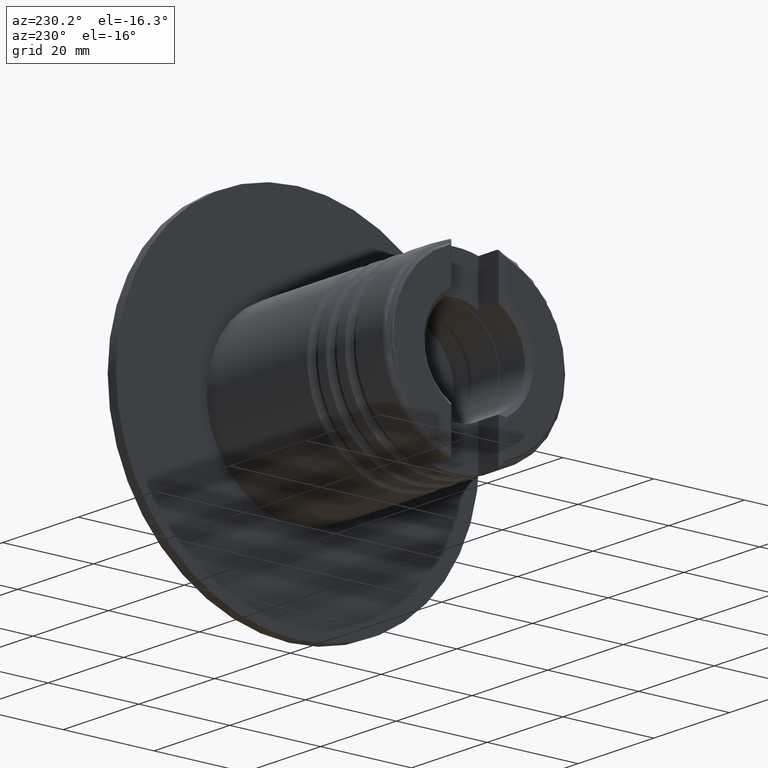
[diagram: clean part render]
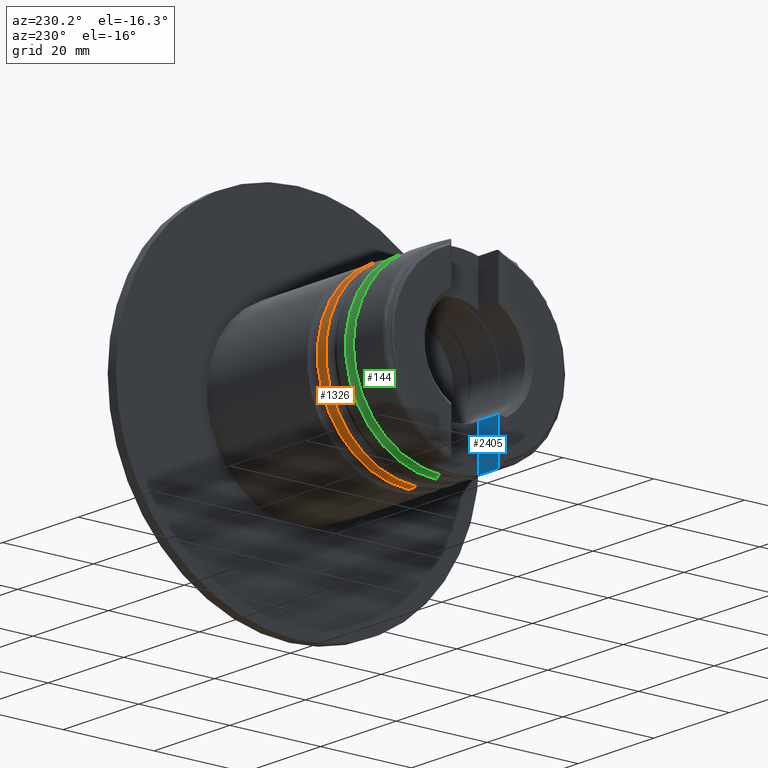
[diagram: same view with three faces highlighted in distinct colors, each labeled with its STEP entity id]
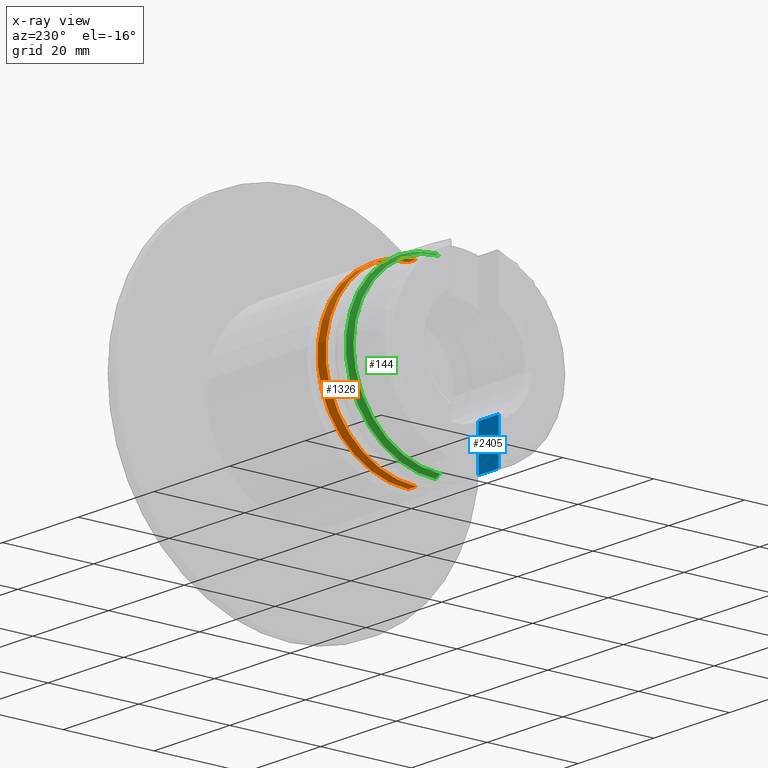
[diagram: x-ray of the same camera — body ghosted, the three highlighted faces saturated]
A machine part, auxiliary view with three faces highlighted in distinct colors.
The next image is the same camera in x-ray (body ghosted, the three faces saturated) — at least one of them is partly hidden behind the body in this view.
Their STEP definitions:

[orange] entity #1326 — the highlighted cylindrical surface (partial cylindrical patch) has radius 20 mm, axis along (1, 0, 0).
#58 = EDGE_CURVE ( 'NONE', #4654, #151, #4177, .T. ) ;
#137 = AXIS2_PLACEMENT_3D ( 'NONE', #2887, #506, #4179 ) ;
#151 = VERTEX_POINT ( 'NONE', #3082 ) ;
#395 = CARTESIAN_POINT ( 'NONE',  ( 0.0000000000000000000, 0.0000000000000000000, -19.99999999999999645 ) ) ;
#481 = CIRCLE ( 'NONE', #2958, 19.99999999999999645 ) ;
#506 = DIRECTION ( 'NONE',  ( -1.000000000000000000, -0.0000000000000000000, -0.0000000000000000000 ) ) ;
#792 = DIRECTION ( 'NONE',  ( 1.000000000000000000, -0.0000000000000000000, -0.0000000000000000000 ) ) ;
#870 = DIRECTION ( 'NONE',  ( 1.000000000000000000, -0.0000000000000000000, -0.0000000000000000000 ) ) ;
#1272 = VERTEX_POINT ( 'NONE', #4032 ) ;
#1292 = ORIENTED_EDGE ( 'NONE', *, *, #4079, .F. ) ;
#1326 = ADVANCED_FACE ( 'NONE', ( #1637 ), #1516, .T. ) ;
#1498 = VERTEX_POINT ( 'NONE', #4077 ) ;
#1516 = CYLINDRICAL_SURFACE ( 'NONE', #2358, 19.99999999999999645 ) ;
#1637 = FACE_OUTER_BOUND ( 'NONE', #1935, .T. ) ;
#1874 = VECTOR ( 'NONE', #870, 1000.000000000000000 ) ;
#1935 = EDGE_LOOP ( 'NONE', ( #5062, #3601, #3493, #1292 ) ) ;
#2116 = LINE ( 'NONE', #4736, #1874 ) ;
#2269 = EDGE_CURVE ( 'NONE', #1498, #1272, #481, .T. ) ;
#2358 = AXIS2_PLACEMENT_3D ( 'NONE', #3728, #3326, #3709 ) ;
#2887 = CARTESIAN_POINT ( 'NONE',  ( -31.15951384798715651, 0.0000000000000000000, 0.0000000000000000000 ) ) ;
#2934 = EDGE_CURVE ( 'NONE', #1498, #4654, #2116, .T. ) ;
#2958 = AXIS2_PLACEMENT_3D ( 'NONE', #3099, #3510, #5144 ) ;
#3082 = CARTESIAN_POINT ( 'NONE',  ( -31.15951384798715651, 2.449293598294705724E-15, -19.99999999999999645 ) ) ;
#3099 = CARTESIAN_POINT ( 'NONE',  ( -33.33993941201282496, 0.0000000000000000000, 0.0000000000000000000 ) ) ;
#3326 = DIRECTION ( 'NONE',  ( 1.000000000000000000, -0.0000000000000000000, -0.0000000000000000000 ) ) ;
#3493 = ORIENTED_EDGE ( 'NONE', *, *, #58, .T. ) ;
#3510 = DIRECTION ( 'NONE',  ( -1.000000000000000000, -0.0000000000000000000, -0.0000000000000000000 ) ) ;
#3601 = ORIENTED_EDGE ( 'NONE', *, *, #2934, .T. ) ;
#3709 = DIRECTION ( 'NONE',  ( 0.0000000000000000000, 0.0000000000000000000, -1.000000000000000000 ) ) ;
#3728 = CARTESIAN_POINT ( 'NONE',  ( 0.0000000000000000000, 0.0000000000000000000, 0.0000000000000000000 ) ) ;
#3846 = VECTOR ( 'NONE', #792, 1000.000000000000000 ) ;
#4032 = CARTESIAN_POINT ( 'NONE',  ( -33.33993941201282496, 0.0000000000000000000, -19.99999999999999645 ) ) ;
#4077 = CARTESIAN_POINT ( 'NONE',  ( -33.33993941201282496, 2.449293598294706119E-15, 19.99999999999999645 ) ) ;
#4079 = EDGE_CURVE ( 'NONE', #1272, #151, #4335, .T. ) ;
#4177 = CIRCLE ( 'NONE', #137, 19.99999999999999645 ) ;
#4179 = DIRECTION ( 'NONE',  ( 0.0000000000000000000, 0.0000000000000000000, 1.000000000000000000 ) ) ;
#4335 = LINE ( 'NONE', #395, #3846 ) ;
#4654 = VERTEX_POINT ( 'NONE', #4776 ) ;
#4736 = CARTESIAN_POINT ( 'NONE',  ( 0.0000000000000000000, 2.449293598294706119E-15, 19.99999999999999645 ) ) ;
#4776 = CARTESIAN_POINT ( 'NONE',  ( -31.15951384798715651, 0.0000000000000000000, 19.99999999999999645 ) ) ;
#5062 = ORIENTED_EDGE ( 'NONE', *, *, #2269, .F. ) ;
#5144 = DIRECTION ( 'NONE',  ( 0.0000000000000000000, 0.0000000000000000000, 1.000000000000000000 ) ) ;

[blue] entity #2405 — the highlighted planar face has unit normal (0, -1, 0).
#171 = DIRECTION ( 'NONE',  ( -0.0000000000000000000, -0.0000000000000000000, 1.000000000000000000 ) ) ;
#380 = VERTEX_POINT ( 'NONE', #4466 ) ;
#398 = EDGE_CURVE ( 'NONE', #2329, #2764, #3527, .T. ) ;
#564 = LINE ( 'NONE', #1366, #1053 ) ;
#614 = LINE ( 'NONE', #1513, #4756 ) ;
#617 = DIRECTION ( 'NONE',  ( -0.0000000000000000000, -0.0000000000000000000, 1.000000000000000000 ) ) ;
#635 = AXIS2_PLACEMENT_3D ( 'NONE', #2290, #5050, #2701 ) ;
#976 = B_SPLINE_CURVE_WITH_KNOTS ( 'NONE', 3,
 ( #2212, #1011, #4133, #4926, #3780, #2585 ),
 .UNSPECIFIED., .F., .F.,
 ( 4, 2, 4 ),
 ( 0.006189759150747369855, 0.006450475082113485067, 0.006711191013479599413 ),
 .UNSPECIFIED. ) ;
#1009 = VECTOR ( 'NONE', #5122, 1000.000000000000000 ) ;
#1011 = CARTESIAN_POINT ( 'NONE',  ( -48.33791550530337844, -5.200000000000006395, -19.31217232731728473 ) ) ;
#1026 = EDGE_CURVE ( 'NONE', #2329, #1401, #614, .T. ) ;
#1053 = VECTOR ( 'NONE', #171, 1000.000000000000000 ) ;
#1340 = FACE_OUTER_BOUND ( 'NONE', #2380, .T. ) ;
#1366 = CARTESIAN_POINT ( 'NONE',  ( -48.74972662999999073, -5.200000000000006395, -25.00000000000000000 ) ) ;
#1401 = VERTEX_POINT ( 'NONE', #2152 ) ;
#1513 = CARTESIAN_POINT ( 'NONE',  ( 8.509964221773027172E-16, -5.199999999999999289, -19.31217232731729538 ) ) ;
#1750 = ORIENTED_EDGE ( 'NONE', *, *, #3692, .T. ) ;
#2058 = LINE ( 'NONE', #4320, #1009 ) ;
#2152 = CARTESIAN_POINT ( 'NONE',  ( -48.24972663000000495, -5.199999999999999289, -19.31217232731729538 ) ) ;
#2212 = CARTESIAN_POINT ( 'NONE',  ( -48.24972663000000495, -5.199999999999999289, -19.31217232731729538 ) ) ;
#2290 = CARTESIAN_POINT ( 'NONE',  ( -43.44972663000000068, -5.200000000000005507, -25.00000000000000000 ) ) ;
#2329 = VERTEX_POINT ( 'NONE', #4215 ) ;
#2380 = EDGE_LOOP ( 'NONE', ( #5032, #1750, #4650, #3791, #5035 ) ) ;
#2405 = ADVANCED_FACE ( 'NONE', ( #1340 ), #4657, .F. ) ;
#2472 = EDGE_CURVE ( 'NONE', #2764, #380, #2058, .T. ) ;
#2585 = CARTESIAN_POINT ( 'NONE',  ( -48.74972662999999073, -5.200000000000006395, -19.17339211886639205 ) ) ;
#2701 = DIRECTION ( 'NONE',  ( 1.000000000000000000, 1.636531581110197874E-16, 0.0000000000000000000 ) ) ;
#2764 = VERTEX_POINT ( 'NONE', #3871 ) ;
#2986 = CARTESIAN_POINT ( 'NONE',  ( -43.44972663000000068, -5.200000000000005507, -25.00000000000000000 ) ) ;
#3527 = LINE ( 'NONE', #2986, #4755 ) ;
#3692 = EDGE_CURVE ( 'NONE', #4970, #380, #564, .T. ) ;
#3733 = EDGE_CURVE ( 'NONE', #1401, #4970, #976, .T. ) ;
#3780 = CARTESIAN_POINT ( 'NONE',  ( -48.67409322424862950, -5.200000000000006395, -19.21863654268734223 ) ) ;
#3791 = ORIENTED_EDGE ( 'NONE', *, *, #398, .F. ) ;
#3830 = DIRECTION ( 'NONE',  ( -1.000000000000000000, 0.0000000000000000000, 0.0000000000000000000 ) ) ;
#3871 = CARTESIAN_POINT ( 'NONE',  ( -43.44972663000000068, -5.200000000000005507, -9.778324242936511368 ) ) ;
#4064 = CARTESIAN_POINT ( 'NONE',  ( -48.74972662999999073, -5.200000000000006395, -19.17339211886639205 ) ) ;
#4133 = CARTESIAN_POINT ( 'NONE',  ( -48.42595634960524364, -5.200000000000007283, -19.29994633938877868 ) ) ;
#4215 = CARTESIAN_POINT ( 'NONE',  ( -43.44972663000000068, -5.200000000000005507, -19.31217232731729538 ) ) ;
#4320 = CARTESIAN_POINT ( 'NONE',  ( 8.509964221773027172E-16, -5.199999999999999289, -9.778324242936511368 ) ) ;
#4466 = CARTESIAN_POINT ( 'NONE',  ( -48.74972662999999073, -5.199999999999999289, -9.778324242936511368 ) ) ;
#4650 = ORIENTED_EDGE ( 'NONE', *, *, #2472, .F. ) ;
#4657 = PLANE ( 'NONE',  #635 ) ;
#4755 = VECTOR ( 'NONE', #617, 1000.000000000000000 ) ;
#4756 = VECTOR ( 'NONE', #3830, 1000.000000000000000 ) ;
#4926 = CARTESIAN_POINT ( 'NONE',  ( -48.59412281667071198, -5.200000000000006395, -19.25298664473530152 ) ) ;
#4970 = VERTEX_POINT ( 'NONE', #4064 ) ;
#5032 = ORIENTED_EDGE ( 'NONE', *, *, #3733, .T. ) ;
#5035 = ORIENTED_EDGE ( 'NONE', *, *, #1026, .T. ) ;
#5050 = DIRECTION ( 'NONE',  ( 1.636531581110197874E-16, -1.000000000000000000, 0.0000000000000000000 ) ) ;
#5122 = DIRECTION ( 'NONE',  ( -1.000000000000000000, 0.0000000000000000000, 0.0000000000000000000 ) ) ;

[green] entity #144 — the highlighted toroidal blend (fillet) surface has major radius 20.75 mm and minor (blend) radius 1.5 mm.
#67 = EDGE_CURVE ( 'NONE', #250, #1010, #3035, .T. ) ;
#68 = EDGE_CURVE ( 'NONE', #3282, #2039, #5008, .T. ) ;
#144 = ADVANCED_FACE ( 'NONE', ( #2030 ), #3219, .F. ) ;
#250 = VERTEX_POINT ( 'NONE', #2068 ) ;
#539 = CARTESIAN_POINT ( 'NONE',  ( -38.50579673177601592, 0.0000000000000000000, 0.0000000000000000000 ) ) ;
#559 = ORIENTED_EDGE ( 'NONE', *, *, #2001, .T. ) ;
#675 = CARTESIAN_POINT ( 'NONE',  ( -38.50579673177601592, 0.0000000000000000000, 19.91176470588235148 ) ) ;
#797 = AXIS2_PLACEMENT_3D ( 'NONE', #4232, #4977, #3417 ) ;
#917 = ORIENTED_EDGE ( 'NONE', *, *, #67, .T. ) ;
#1010 = VERTEX_POINT ( 'NONE', #675 ) ;
#1777 = DIRECTION ( 'NONE',  ( 0.0000000000000000000, 0.0000000000000000000, 1.000000000000000000 ) ) ;
#1838 = CARTESIAN_POINT ( 'NONE',  ( -39.74972662999999073, 0.0000000000000000000, 20.74999999999999645 ) ) ;
#2001 = EDGE_CURVE ( 'NONE', #1010, #2039, #2871, .T. ) ;
#2030 = FACE_OUTER_BOUND ( 'NONE', #3850, .T. ) ;
#2039 = VERTEX_POINT ( 'NONE', #4522 ) ;
#2068 = CARTESIAN_POINT ( 'NONE',  ( -39.74972662999999073, 0.0000000000000000000, 19.24999999999999645 ) ) ;
#2431 = CIRCLE ( 'NONE', #797, 19.24999999999999645 ) ;
#2601 = DIRECTION ( 'NONE',  ( -1.000000000000000000, -0.0000000000000000000, -0.0000000000000000000 ) ) ;
#2630 = ORIENTED_EDGE ( 'NONE', *, *, #68, .F. ) ;
#2693 = DIRECTION ( 'NONE',  ( 0.0000000000000000000, 0.0000000000000000000, 1.000000000000000000 ) ) ;
#2727 = ORIENTED_EDGE ( 'NONE', *, *, #3975, .F. ) ;
#2871 = CIRCLE ( 'NONE', #4968, 19.91176470588235148 ) ;
#3021 = DIRECTION ( 'NONE',  ( 0.0000000000000000000, -1.000000000000000000, 0.0000000000000000000 ) ) ;
#3035 = CIRCLE ( 'NONE', #4058, 1.500000000000001332 ) ;
#3219 = TOROIDAL_SURFACE ( 'NONE', #3862, 20.74999999999999645, 1.500000000000000666 ) ;
#3282 = VERTEX_POINT ( 'NONE', #4138 ) ;
#3332 = AXIS2_PLACEMENT_3D ( 'NONE', #4954, #4576, #3806 ) ;
#3417 = DIRECTION ( 'NONE',  ( 0.0000000000000000000, 0.0000000000000000000, 1.000000000000000000 ) ) ;
#3425 = DIRECTION ( 'NONE',  ( 0.0000000000000000000, 0.0000000000000000000, -1.000000000000000000 ) ) ;
#3806 = DIRECTION ( 'NONE',  ( 0.0000000000000000000, -1.224646799147351975E-16, 1.000000000000000000 ) ) ;
#3850 = EDGE_LOOP ( 'NONE', ( #2727, #917, #559, #2630 ) ) ;
#3862 = AXIS2_PLACEMENT_3D ( 'NONE', #5041, #4240, #2693 ) ;
#3975 = EDGE_CURVE ( 'NONE', #250, #3282, #2431, .T. ) ;
#4058 = AXIS2_PLACEMENT_3D ( 'NONE', #1838, #3021, #3425 ) ;
#4138 = CARTESIAN_POINT ( 'NONE',  ( -39.74972662999999073, 2.357445088358654363E-15, -19.24999999999999645 ) ) ;
#4232 = CARTESIAN_POINT ( 'NONE',  ( -39.74972662999999073, 0.0000000000000000000, 0.0000000000000000000 ) ) ;
#4240 = DIRECTION ( 'NONE',  ( -1.000000000000000000, -0.0000000000000000000, -0.0000000000000000000 ) ) ;
#4522 = CARTESIAN_POINT ( 'NONE',  ( -38.50579673177601592, 2.438487891243406005E-15, -19.91176470588235148 ) ) ;
#4576 = DIRECTION ( 'NONE',  ( -0.0000000000000000000, 1.000000000000000000, 1.224646799147353207E-16 ) ) ;
#4954 = CARTESIAN_POINT ( 'NONE',  ( -39.74972662999999073, 2.541142108230757480E-15, -20.74999999999999645 ) ) ;
#4968 = AXIS2_PLACEMENT_3D ( 'NONE', #539, #2601, #1777 ) ;
#4977 = DIRECTION ( 'NONE',  ( -1.000000000000000000, -0.0000000000000000000, -0.0000000000000000000 ) ) ;
#5008 = CIRCLE ( 'NONE', #3332, 1.500000000000001332 ) ;
#5041 = CARTESIAN_POINT ( 'NONE',  ( -39.74972662999999073, 0.0000000000000000000, 0.0000000000000000000 ) ) ;